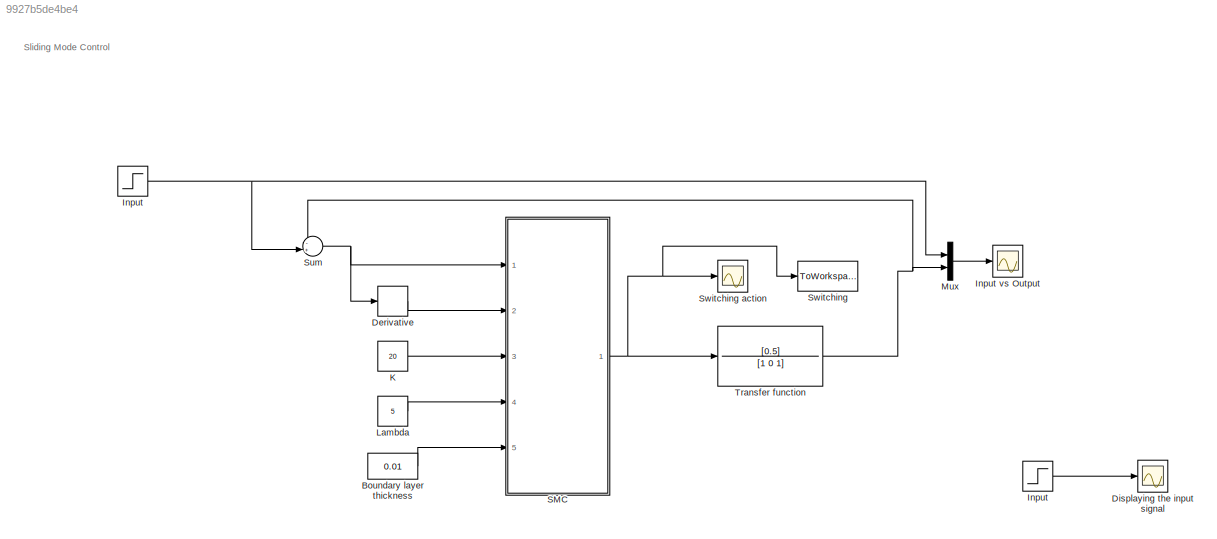
MODEL slx_9927b5de4be4
KIND model
CONFIG AbsTol = auto
CONFIG EnableMultiTasking = off
CONFIG FixedStep = ts
CONFIG MaxStep = auto
CONFIG MinStep = auto
CONFIG RelTol = 1e-3
CONFIG SampleTimeConstraint = Unconstrained
CONFIG Solver = ode4
CONFIG SolverName = ode4
CONFIG StartTime = 0.0
CONFIG StopTime = 10.0
BLOCK [Constant] Boundary layer thickness
  Value = 0.01
BLOCK [Derivative] Derivative
  CoefficientInTFapproximation = 1
BLOCK [Scope] Displaying the input signal
  Floating = off
  NumInputPorts = 1
  Ports = [1]
  ScopeSpecificationString = Simulink.scopes.TimeScopeBlockCfg('CurrentConfiguration', extmgr.ConfigurationSet(extmgr.Configuration('Core','General UI',true,'FigureColor',[1 1 1]),extmgr.Configuration('Core','Source UI',true),extmgr.Configuration('Sources','WiredSimulink',true,'DataLoggingVariableName','ScopeData2'),extmgr.Configuration('Visuals','Time Domain',true,'SerializedDisplays',{struct('MinYLimReal','-0.125','MaxYLimR...<+1603ch>
BLOCK [Step] Input
  SampleTime = 0
BLOCK [Step] Input 
  SampleTime = 0
BLOCK [Scope] Input vs Output
  Floating = off
  NumInputPorts = 1
  Ports = [1]
  ScopeSpecificationString = Simulink.scopes.TimeScopeBlockCfg('CurrentConfiguration', extmgr.ConfigurationSet(extmgr.Configuration('Core','General UI',true,'FigureColor',[1 1 1]),extmgr.Configuration('Core','Source UI',true),extmgr.Configuration('Sources','WiredSimulink',true,'DataLoggingSaveFormat','Array','DataLoggingDecimation','1','DataLoggingDecimateData',true),extmgr.Configuration('Visuals','Time Domain',true,'Serializ...<+1914ch>
BLOCK [Constant] K
  Value = 20
BLOCK [Constant] Lambda
  Value = 5
BLOCK [Mux] Mux
  DisplayOption = bar
  Inputs = 2
  Ports = [2, 1]
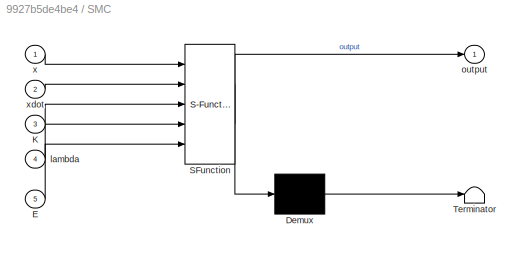
BLOCK [SubSystem] SMC
  ErrorFcn = Stateflow.Translate.translate
  PermitHierarchicalResolution = ExplicitOnly
  Ports = [5, 1]
  RequestExecContextInheritance = off
  SFBlockType = MATLAB Function
  TreatAsAtomicUnit = on
BLOCK [Demux] SMC/ Demux 
  Outputs = 1
  Ports = [1, 1]
BLOCK [S-Function] SMC/ SFunction 
  EnableBusSupport = on
  FunctionName = sf_sfun
  PortCounts = [5 2]
  Ports = [5, 2]
  SFcnIsStateOwnerBlock = off
  SFunctionDeploymentMode = off
  Tag = Stateflow S-Function 2
BLOCK [Terminator] SMC/ Terminator 
BLOCK [Inport] SMC/E
  IconDisplay = Port number
  Port = 5
BLOCK [Inport] SMC/K
  IconDisplay = Port number
  Port = 3
BLOCK [Inport] SMC/lambda
  IconDisplay = Port number
  Port = 4
BLOCK [Outport] SMC/output
  IconDisplay = Port number
BLOCK [Inport] SMC/x
  IconDisplay = Port number
BLOCK [Inport] SMC/xdot
  IconDisplay = Port number
  Port = 2
BLOCK [Sum] Sum
  IconShape = round
  InputSameDT = off
  Inputs = -+|
  OutDataTypeStr = Inherit: Inherit via internal rule
  Ports = [2, 1]
  SaturateOnIntegerOverflow = off
BLOCK [ToWorkspace] Switching
  FixptAsFi = on
  MaxDataPoints = inf
  Ports = [1]
  SampleTime = -1
  VariableName = switching
BLOCK [Scope] Switching action
  Floating = off
  NumInputPorts = 1
  Ports = [1]
  ScopeSpecificationString = Simulink.scopes.TimeScopeBlockCfg('CurrentConfiguration', extmgr.ConfigurationSet(extmgr.Configuration('Core','General UI',true,'FigureColor',[1 1 1]),extmgr.Configuration('Core','Source UI',true),extmgr.Configuration('Sources','WiredSimulink',true,'DataLoggingVariableName','ScopeData1','DataLoggingSaveFormat','Array','DataLoggingDecimation','1','DataLoggingDecimateData',true),extmgr.Configuration...<+1880ch>
BLOCK [TransferFcn] Transfer function 
  Denominator = [1 0 1]
  Numerator = [0.5]
ANNOTATION (root): Sliding Mode Control
LINE Boundary layer thickness:1 -> SMC:5
LINE Derivative:1 -> SMC:2
NET Input :1 -> Mux:1, Sum:2
LINE Input:1 -> Displaying the input signal:1
LINE K:1 -> SMC:3
LINE Lambda:1 -> SMC:4
LINE Mux:1 -> Input vs Output:1
NET SMC:1 -> Switching action:1, Switching:1, Transfer function :1
NET Sum:1 -> Derivative:1, SMC:1
NET Transfer function :1 -> Mux:2, Sum:1
note: NET lines group one-source signal fan-out (src -> all destinations, sorted); 1:1 wires keep LINE
CHART SMC states=1 transitions=1
  STATE_LABEL 'eML_blk_kernel()'
  STATE_LABEL 'SCRIPT:\nfunction output = smc(x, xdot, K, lambda, E)\n%#codegen\n\n    s = lambda * x + xdot;\n        \n    if (abs(s) > E)    \n        sat_s = sign(s);\n    else\n        sat_s = s/E;\n    end\n    \n    output = -(xdot - K * sat_s);\n\nend'
